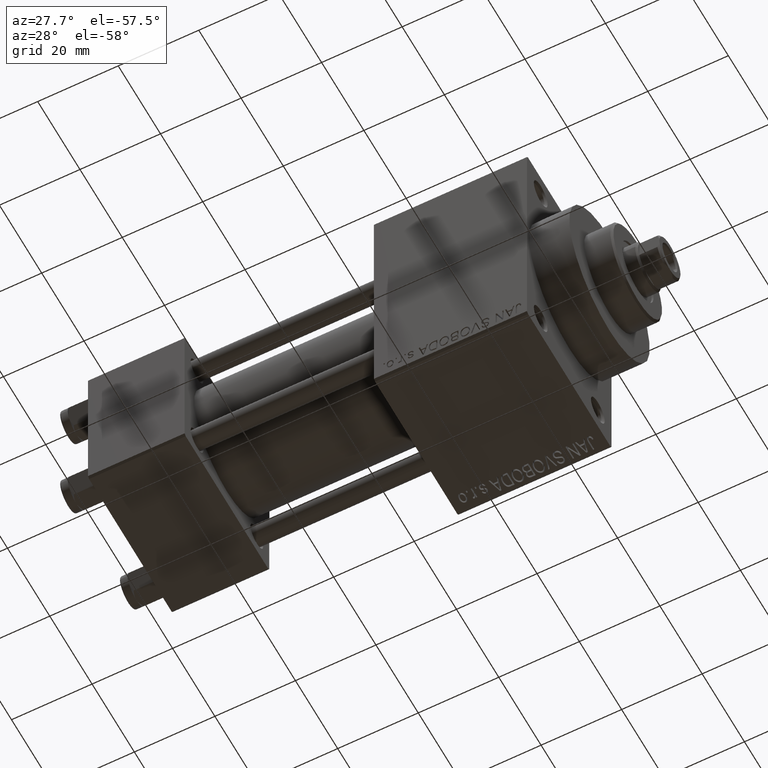
[diagram: clean part render]
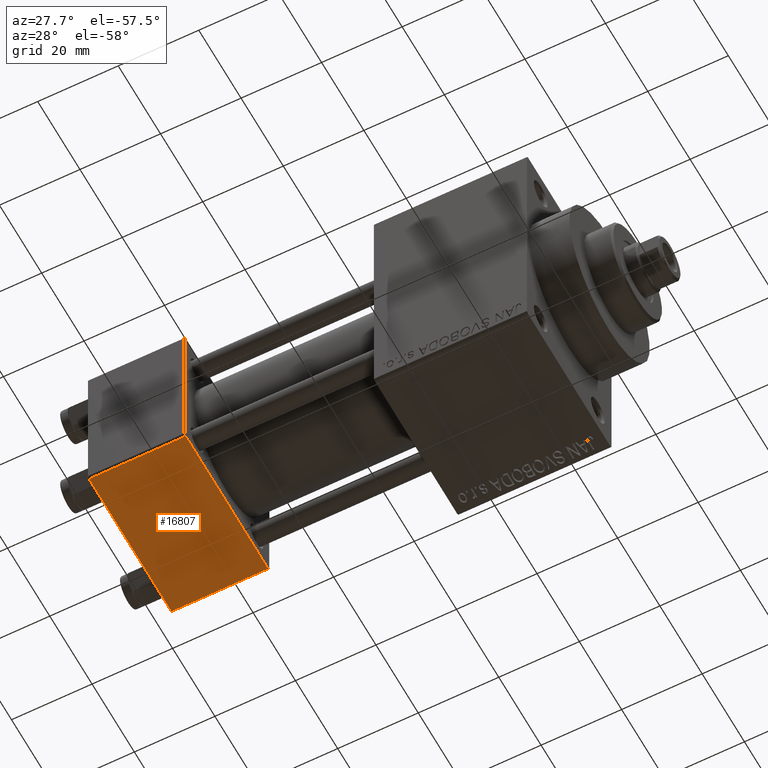
[diagram: same view with one face highlighted and labeled with its STEP entity id]
A machine part, auxiliary view. The second image highlights one B-rep face of the part: STEP entity #16807.
In plain terms, the highlighted planar face has unit normal (0, -0, -1).
Its self-contained STEP definition (entity closure, byte-faithful):
#1100 = VERTEX_POINT ( 'NONE', #27819 ) ;
#1693 = VERTEX_POINT ( 'NONE', #34806 ) ;
#1771 = VECTOR ( 'NONE', #36051, 1000.000000000000000 ) ;
#2604 = LINE ( 'NONE', #3069, #32093 ) ;
#3069 = CARTESIAN_POINT ( 'NONE',  ( 24.00000000000000000, 20.00000000000000000, -20.00000000000000711 ) ) ;
#3891 = ORIENTED_EDGE ( 'NONE', *, *, #33007, .T. ) ;
#5787 = VERTEX_POINT ( 'NONE', #38740 ) ;
#8498 = CARTESIAN_POINT ( 'NONE',  ( 24.00000000000000000, 20.00000000000000000, -20.00000000000000711 ) ) ;
#16807 = ADVANCED_FACE ( 'NONE', ( #26832 ), #37076, .T. ) ;
#17588 = DIRECTION ( 'NONE',  ( 0.000000000000000000, -1.000000000000000000, 1.734723475976807094E-16 ) ) ;
#21067 = LINE ( 'NONE', #27976, #37651 ) ;
#24347 = EDGE_LOOP ( 'NONE', ( #32609, #41916, #3891, #24997 ) ) ;
#24997 = ORIENTED_EDGE ( 'NONE', *, *, #33524, .T. ) ;
#26832 = FACE_OUTER_BOUND ( 'NONE', #24347, .T. ) ;
#27819 = CARTESIAN_POINT ( 'NONE',  ( 0.000000000000000000, -19.50000000000000711, -20.00000000000000000 ) ) ;
#27976 = CARTESIAN_POINT ( 'NONE',  ( 24.00000000000000000, 19.50000000000000711, -20.00000000000000711 ) ) ;
#28902 = LINE ( 'NONE', #42714, #1771 ) ;
#29652 = CARTESIAN_POINT ( 'NONE',  ( 0.000000000000000000, 19.50000000000000711, -20.00000000000000711 ) ) ;
#32093 = VECTOR ( 'NONE', #17588, 1000.000000000000000 ) ;
#32609 = ORIENTED_EDGE ( 'NONE', *, *, #37673, .F. ) ;
#33007 = EDGE_CURVE ( 'NONE', #1693, #5787, #2604, .T. ) ;
#33524 = EDGE_CURVE ( 'NONE', #5787, #1100, #28902, .T. ) ;
#34806 = CARTESIAN_POINT ( 'NONE',  ( 24.00000000000000000, 19.50000000000000711, -20.00000000000000711 ) ) ;
#35316 = CARTESIAN_POINT ( 'NONE',  ( 0.000000000000000000, 20.00000000000000000, -20.00000000000000711 ) ) ;
#36051 = DIRECTION ( 'NONE',  ( -1.000000000000000000, 0.000000000000000000, 0.000000000000000000 ) ) ;
#36632 = VERTEX_POINT ( 'NONE', #29652 ) ;
#36999 = AXIS2_PLACEMENT_3D ( 'NONE', #8498, #37310, #40642 ) ;
#37076 = PLANE ( 'NONE',  #36999 ) ;
#37310 = DIRECTION ( 'NONE',  ( 0.000000000000000000, -1.734723475976806848E-16, -1.000000000000000000 ) ) ;
#37651 = VECTOR ( 'NONE', #42491, 1000.000000000000000 ) ;
#37673 = EDGE_CURVE ( 'NONE', #36632, #1100, #38883, .T. ) ;
#38740 = CARTESIAN_POINT ( 'NONE',  ( 24.00000000000000000, -19.50000000000000711, -20.00000000000000000 ) ) ;
#38883 = LINE ( 'NONE', #35316, #45840 ) ;
#40642 = DIRECTION ( 'NONE',  ( 0.000000000000000000, 1.000000000000000000, -1.734723475976806848E-16 ) ) ;
#41916 = ORIENTED_EDGE ( 'NONE', *, *, #42540, .T. ) ;
#42456 = DIRECTION ( 'NONE',  ( 0.000000000000000000, -1.000000000000000000, 1.734723475976807094E-16 ) ) ;
#42491 = DIRECTION ( 'NONE',  ( 1.000000000000000000, 0.000000000000000000, 0.000000000000000000 ) ) ;
#42540 = EDGE_CURVE ( 'NONE', #36632, #1693, #21067, .T. ) ;
#42714 = CARTESIAN_POINT ( 'NONE',  ( 0.000000000000000000, -19.50000000000000711, -20.00000000000000000 ) ) ;
#45840 = VECTOR ( 'NONE', #42456, 1000.000000000000000 ) ;